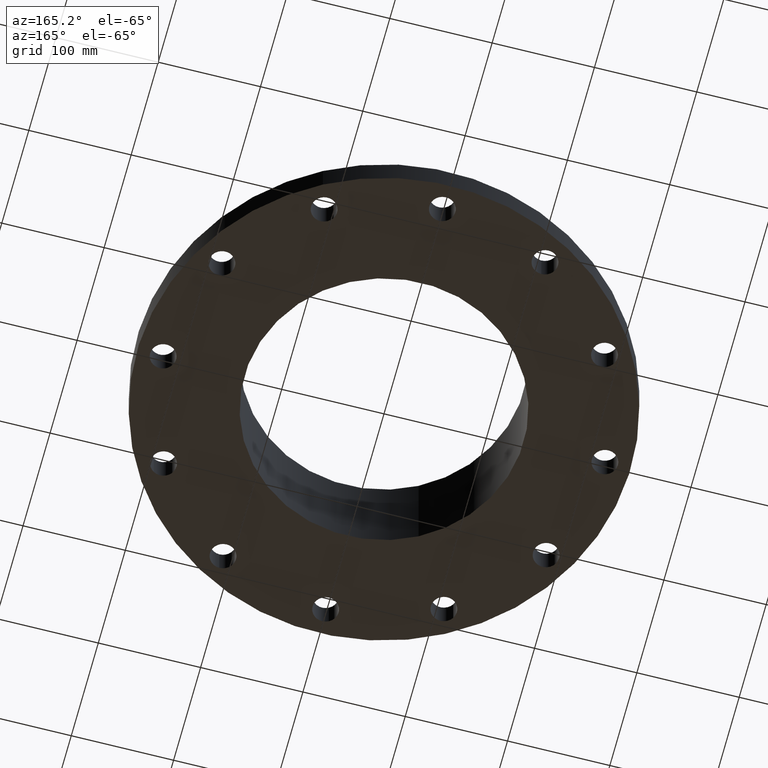
[diagram: clean part render]
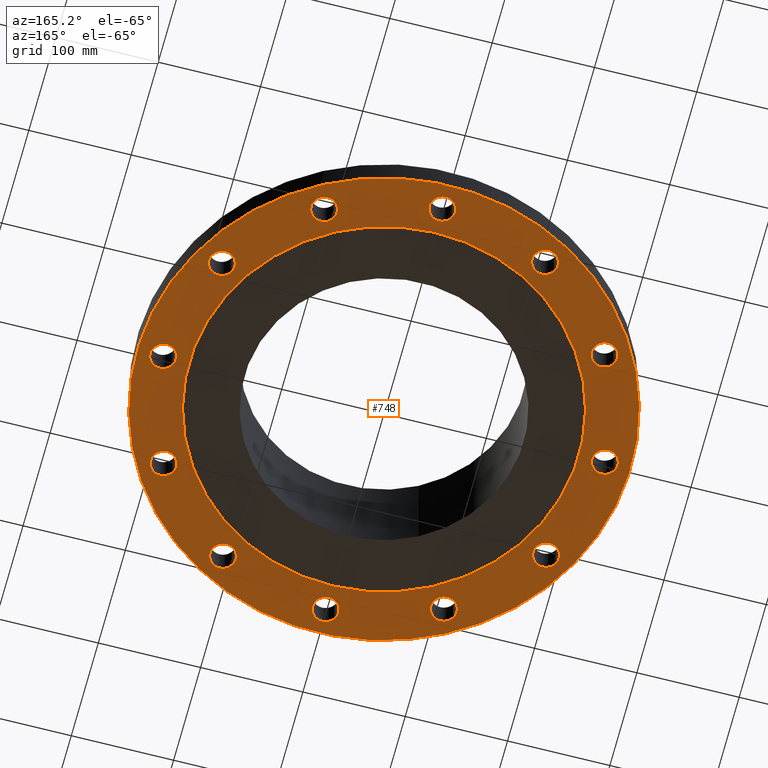
[diagram: same view with one face highlighted and labeled with its STEP entity id]
A machine part, auxiliary view. The second image highlights one B-rep face of the part: STEP entity #748.
In plain terms, the highlighted planar face has unit normal (0, 0, -1).
Its self-contained STEP definition (entity closure, byte-faithful):
#51=AXIS2_PLACEMENT_3D('Circle Axis2P3D',#49,#50,$) ;
#77=AXIS2_PLACEMENT_3D('Circle Axis2P3D',#75,#76,$) ;
#99=AXIS2_PLACEMENT_3D('Circle Axis2P3D',#97,#98,$) ;
#134=AXIS2_PLACEMENT_3D('Circle Axis2P3D',#132,#133,$) ;
#513=AXIS2_PLACEMENT_3D('Plane Axis2P3D',#510,#511,#512) ;
#517=AXIS2_PLACEMENT_3D('Circle Axis2P3D',#515,#516,$) ;
#526=AXIS2_PLACEMENT_3D('Circle Axis2P3D',#524,#525,$) ;
#552=AXIS2_PLACEMENT_3D('Circle Axis2P3D',#550,#551,$) ;
#561=AXIS2_PLACEMENT_3D('Circle Axis2P3D',#559,#560,$) ;
#570=AXIS2_PLACEMENT_3D('Circle Axis2P3D',#568,#569,$) ;
#579=AXIS2_PLACEMENT_3D('Circle Axis2P3D',#577,#578,$) ;
#588=AXIS2_PLACEMENT_3D('Circle Axis2P3D',#586,#587,$) ;
#597=AXIS2_PLACEMENT_3D('Circle Axis2P3D',#595,#596,$) ;
#606=AXIS2_PLACEMENT_3D('Circle Axis2P3D',#604,#605,$) ;
#615=AXIS2_PLACEMENT_3D('Circle Axis2P3D',#613,#614,$) ;
#624=AXIS2_PLACEMENT_3D('Circle Axis2P3D',#622,#623,$) ;
#633=AXIS2_PLACEMENT_3D('Circle Axis2P3D',#631,#632,$) ;
#642=AXIS2_PLACEMENT_3D('Circle Axis2P3D',#640,#641,$) ;
#651=AXIS2_PLACEMENT_3D('Circle Axis2P3D',#649,#650,$) ;
#660=AXIS2_PLACEMENT_3D('Circle Axis2P3D',#658,#659,$) ;
#669=AXIS2_PLACEMENT_3D('Circle Axis2P3D',#667,#668,$) ;
#678=AXIS2_PLACEMENT_3D('Circle Axis2P3D',#676,#677,$) ;
#687=AXIS2_PLACEMENT_3D('Circle Axis2P3D',#685,#686,$) ;
#696=AXIS2_PLACEMENT_3D('Circle Axis2P3D',#694,#695,$) ;
#705=AXIS2_PLACEMENT_3D('Circle Axis2P3D',#703,#704,$) ;
#714=AXIS2_PLACEMENT_3D('Circle Axis2P3D',#712,#713,$) ;
#723=AXIS2_PLACEMENT_3D('Circle Axis2P3D',#721,#722,$) ;
#732=AXIS2_PLACEMENT_3D('Circle Axis2P3D',#730,#731,$) ;
#741=AXIS2_PLACEMENT_3D('Circle Axis2P3D',#739,#740,$) ;
#44=CARTESIAN_POINT('Vertex',(8.06120871909,0.239712769303,0.)) ;
#49=CARTESIAN_POINT('Axis2P3D Location',(8.50000000003,0.,0.)) ;
#53=CARTESIAN_POINT('Vertex',(8.93879128098,-0.239712769303,0.)) ;
#75=CARTESIAN_POINT('Axis2P3D Location',(8.50000000003,0.,0.)) ;
#97=CARTESIAN_POINT('Axis2P3D Location',(0.,0.,1.1189649382E-015)) ;
#101=CARTESIAN_POINT('Vertex',(-4.55454261676,-8.33703433799,1.1189649382E-015)) ;
#103=CARTESIAN_POINT('Vertex',(4.55454261676,8.33703433799,1.1189649382E-015)) ;
#132=CARTESIAN_POINT('Axis2P3D Location',(0.,0.,1.1189649382E-015)) ;
#510=CARTESIAN_POINT('Axis2P3D Location',(0.,5.37500000002,0.)) ;
#515=CARTESIAN_POINT('Axis2P3D Location',(0.,0.,0.)) ;
#519=CARTESIAN_POINT('Vertex',(-3.59569153955,-6.5818692142,0.)) ;
#521=CARTESIAN_POINT('Vertex',(3.59569153955,6.5818692142,0.)) ;
#524=CARTESIAN_POINT('Axis2P3D Location',(0.,0.,0.)) ;
#550=CARTESIAN_POINT('Axis2P3D Location',(7.3612159322,-4.25000000002,0.)) ;
#554=CARTESIAN_POINT('Vertex',(7.10106792059,-3.82300701172,0.)) ;
#556=CARTESIAN_POINT('Vertex',(7.6213639438,-4.67699298832,0.)) ;
#559=CARTESIAN_POINT('Axis2P3D Location',(7.3612159322,-4.25000000002,0.)) ;
#568=CARTESIAN_POINT('Axis2P3D Location',(4.25000000002,-7.3612159322,0.)) ;
#572=CARTESIAN_POINT('Vertex',(4.23820170737,-6.86135515129,0.)) ;
#574=CARTESIAN_POINT('Vertex',(4.26179829266,-7.86107671311,0.)) ;
#577=CARTESIAN_POINT('Axis2P3D Location',(4.25000000002,-7.3612159322,0.)) ;
#586=CARTESIAN_POINT('Axis2P3D Location',(5.59482469102E-016,-8.50000000003,0.)) ;
#590=CARTESIAN_POINT('Vertex',(0.239712769303,-8.06120871909,0.)) ;
#592=CARTESIAN_POINT('Vertex',(-0.239712769303,-8.93879128098,0.)) ;
#595=CARTESIAN_POINT('Axis2P3D Location',(-4.19611851827E-016,-8.50000000003,0.)) ;
#604=CARTESIAN_POINT('Axis2P3D Location',(-4.25000000002,-7.3612159322,0.)) ;
#608=CARTESIAN_POINT('Vertex',(-3.82300701172,-7.10106792059,0.)) ;
#610=CARTESIAN_POINT('Vertex',(-4.67699298832,-7.6213639438,-1.1189649382E-015)) ;
#613=CARTESIAN_POINT('Axis2P3D Location',(-4.25000000002,-7.3612159322,0.)) ;
#622=CARTESIAN_POINT('Axis2P3D Location',(-7.3612159322,-4.25000000002,0.)) ;
#626=CARTESIAN_POINT('Vertex',(-6.86135515129,-4.23820170737,0.)) ;
#628=CARTESIAN_POINT('Vertex',(-7.86107671311,-4.26179829266,0.)) ;
#631=CARTESIAN_POINT('Axis2P3D Location',(-7.3612159322,-4.25000000002,0.)) ;
#640=CARTESIAN_POINT('Axis2P3D Location',(-8.50000000003,-1.1189649382E-015,0.)) ;
#644=CARTESIAN_POINT('Vertex',(-8.06120871909,-0.239712769303,0.)) ;
#646=CARTESIAN_POINT('Vertex',(-8.93879128098,0.239712769303,0.)) ;
#649=CARTESIAN_POINT('Axis2P3D Location',(-8.50000000003,-1.1189649382E-015,0.)) ;
#658=CARTESIAN_POINT('Axis2P3D Location',(-7.3612159322,4.25000000002,0.)) ;
#662=CARTESIAN_POINT('Vertex',(-7.10106792059,3.82300701172,0.)) ;
#664=CARTESIAN_POINT('Vertex',(-7.6213639438,4.67699298832,0.)) ;
#667=CARTESIAN_POINT('Axis2P3D Location',(-7.3612159322,4.25000000002,0.)) ;
#676=CARTESIAN_POINT('Axis2P3D Location',(-4.25000000002,7.3612159322,0.)) ;
#680=CARTESIAN_POINT('Vertex',(-4.23820170737,6.86135515129,0.)) ;
#682=CARTESIAN_POINT('Vertex',(-4.26179829266,7.86107671311,0.)) ;
#685=CARTESIAN_POINT('Axis2P3D Location',(-4.25000000002,7.3612159322,0.)) ;
#694=CARTESIAN_POINT('Axis2P3D Location',(-4.19611851827E-016,8.50000000003,0.)) ;
#698=CARTESIAN_POINT('Vertex',(-0.239712769303,8.06120871909,0.)) ;
#700=CARTESIAN_POINT('Vertex',(0.239712769303,8.93879128098,0.)) ;
#703=CARTESIAN_POINT('Axis2P3D Location',(2.09805925913E-016,8.50000000003,0.)) ;
#712=CARTESIAN_POINT('Axis2P3D Location',(4.25000000002,7.3612159322,0.)) ;
#716=CARTESIAN_POINT('Vertex',(3.82300701172,7.10106792059,0.)) ;
#718=CARTESIAN_POINT('Vertex',(4.67699298832,7.6213639438,0.)) ;
#721=CARTESIAN_POINT('Axis2P3D Location',(4.25000000002,7.3612159322,0.)) ;
#730=CARTESIAN_POINT('Axis2P3D Location',(7.3612159322,4.25000000002,0.)) ;
#734=CARTESIAN_POINT('Vertex',(6.86135515129,4.23820170737,0.)) ;
#736=CARTESIAN_POINT('Vertex',(7.86107671311,4.26179829266,0.)) ;
#739=CARTESIAN_POINT('Axis2P3D Location',(7.3612159322,4.25000000002,0.)) ;
#50=DIRECTION('Axis2P3D Direction',(0.,-0.,-0.0393700787402)) ;
#76=DIRECTION('Axis2P3D Direction',(0.,-0.,-0.0393700787402)) ;
#98=DIRECTION('Axis2P3D Direction',(0.,0.,-0.0393700787402)) ;
#133=DIRECTION('Axis2P3D Direction',(0.,0.,-0.0393700787402)) ;
#511=DIRECTION('Axis2P3D Direction',(0.,0.,-0.0393700787402)) ;
#512=DIRECTION('Axis2P3D XDirection',(0.0393700787402,0.,0.)) ;
#516=DIRECTION('Axis2P3D Direction',(0.,0.,-0.0393700787402)) ;
#525=DIRECTION('Axis2P3D Direction',(0.,0.,-0.0393700787402)) ;
#551=DIRECTION('Axis2P3D Direction',(0.,0.,-0.0393700787402)) ;
#560=DIRECTION('Axis2P3D Direction',(0.,0.,-0.0393700787402)) ;
#569=DIRECTION('Axis2P3D Direction',(0.,0.,-0.0393700787402)) ;
#578=DIRECTION('Axis2P3D Direction',(0.,0.,-0.0393700787402)) ;
#587=DIRECTION('Axis2P3D Direction',(0.,0.,-0.0393700787402)) ;
#596=DIRECTION('Axis2P3D Direction',(0.,0.,-0.0393700787402)) ;
#605=DIRECTION('Axis2P3D Direction',(0.,0.,-0.0393700787402)) ;
#614=DIRECTION('Axis2P3D Direction',(0.,0.,-0.0393700787402)) ;
#623=DIRECTION('Axis2P3D Direction',(0.,0.,-0.0393700787402)) ;
#632=DIRECTION('Axis2P3D Direction',(0.,0.,-0.0393700787402)) ;
#641=DIRECTION('Axis2P3D Direction',(0.,0.,-0.0393700787402)) ;
#650=DIRECTION('Axis2P3D Direction',(0.,0.,-0.0393700787402)) ;
#659=DIRECTION('Axis2P3D Direction',(0.,0.,-0.0393700787402)) ;
#668=DIRECTION('Axis2P3D Direction',(0.,0.,-0.0393700787402)) ;
#677=DIRECTION('Axis2P3D Direction',(0.,0.,-0.0393700787402)) ;
#686=DIRECTION('Axis2P3D Direction',(0.,0.,-0.0393700787402)) ;
#695=DIRECTION('Axis2P3D Direction',(0.,0.,-0.0393700787402)) ;
#704=DIRECTION('Axis2P3D Direction',(0.,0.,-0.0393700787402)) ;
#713=DIRECTION('Axis2P3D Direction',(0.,0.,-0.0393700787402)) ;
#722=DIRECTION('Axis2P3D Direction',(0.,0.,-0.0393700787402)) ;
#731=DIRECTION('Axis2P3D Direction',(0.,0.,-0.0393700787402)) ;
#740=DIRECTION('Axis2P3D Direction',(0.,0.,-0.0393700787402)) ;
#539=ORIENTED_EDGE('',*,*,#105,.T.) ;
#540=ORIENTED_EDGE('',*,*,#136,.T.) ;
#543=ORIENTED_EDGE('',*,*,#79,.F.) ;
#544=ORIENTED_EDGE('',*,*,#55,.F.) ;
#547=ORIENTED_EDGE('',*,*,#528,.F.) ;
#548=ORIENTED_EDGE('',*,*,#523,.F.) ;
#565=ORIENTED_EDGE('',*,*,#558,.F.) ;
#566=ORIENTED_EDGE('',*,*,#563,.F.) ;
#583=ORIENTED_EDGE('',*,*,#576,.F.) ;
#584=ORIENTED_EDGE('',*,*,#581,.F.) ;
#601=ORIENTED_EDGE('',*,*,#594,.F.) ;
#602=ORIENTED_EDGE('',*,*,#599,.F.) ;
#619=ORIENTED_EDGE('',*,*,#612,.F.) ;
#620=ORIENTED_EDGE('',*,*,#617,.F.) ;
#637=ORIENTED_EDGE('',*,*,#630,.F.) ;
#638=ORIENTED_EDGE('',*,*,#635,.F.) ;
#655=ORIENTED_EDGE('',*,*,#648,.F.) ;
#656=ORIENTED_EDGE('',*,*,#653,.F.) ;
#673=ORIENTED_EDGE('',*,*,#666,.F.) ;
#674=ORIENTED_EDGE('',*,*,#671,.F.) ;
#691=ORIENTED_EDGE('',*,*,#684,.F.) ;
#692=ORIENTED_EDGE('',*,*,#689,.F.) ;
#709=ORIENTED_EDGE('',*,*,#702,.F.) ;
#710=ORIENTED_EDGE('',*,*,#707,.F.) ;
#727=ORIENTED_EDGE('',*,*,#720,.F.) ;
#728=ORIENTED_EDGE('',*,*,#725,.F.) ;
#745=ORIENTED_EDGE('',*,*,#738,.F.) ;
#746=ORIENTED_EDGE('',*,*,#743,.F.) ;
#545=FACE_BOUND('',#542,.T.) ;
#549=FACE_BOUND('',#546,.T.) ;
#567=FACE_BOUND('',#564,.T.) ;
#585=FACE_BOUND('',#582,.T.) ;
#603=FACE_BOUND('',#600,.T.) ;
#621=FACE_BOUND('',#618,.T.) ;
#639=FACE_BOUND('',#636,.T.) ;
#657=FACE_BOUND('',#654,.T.) ;
#675=FACE_BOUND('',#672,.T.) ;
#693=FACE_BOUND('',#690,.T.) ;
#711=FACE_BOUND('',#708,.T.) ;
#729=FACE_BOUND('',#726,.T.) ;
#747=FACE_BOUND('',#744,.T.) ;
#748=ADVANCED_FACE('PartBody',(#541,#545,#549,#567,#585,#603,#621,#639,#657,#675,#693,#711,#729,#747),#514,.T.) ;
#52=CIRCLE('generated circle',#51,0.500000000002) ;
#78=CIRCLE('generated circle',#77,0.500000000002) ;
#100=CIRCLE('generated circle',#99,9.50000000004) ;
#135=CIRCLE('generated circle',#134,9.50000000004) ;
#518=CIRCLE('generated circle',#517,7.50000000003) ;
#527=CIRCLE('generated circle',#526,7.50000000003) ;
#553=CIRCLE('generated circle',#552,0.500000000002) ;
#562=CIRCLE('generated circle',#561,0.500000000002) ;
#571=CIRCLE('generated circle',#570,0.500000000002) ;
#580=CIRCLE('generated circle',#579,0.500000000002) ;
#589=CIRCLE('generated circle',#588,0.500000000002) ;
#598=CIRCLE('generated circle',#597,0.500000000002) ;
#607=CIRCLE('generated circle',#606,0.500000000002) ;
#616=CIRCLE('generated circle',#615,0.500000000002) ;
#625=CIRCLE('generated circle',#624,0.500000000002) ;
#634=CIRCLE('generated circle',#633,0.500000000002) ;
#643=CIRCLE('generated circle',#642,0.500000000002) ;
#652=CIRCLE('generated circle',#651,0.500000000002) ;
#661=CIRCLE('generated circle',#660,0.500000000002) ;
#670=CIRCLE('generated circle',#669,0.500000000002) ;
#679=CIRCLE('generated circle',#678,0.500000000002) ;
#688=CIRCLE('generated circle',#687,0.500000000002) ;
#697=CIRCLE('generated circle',#696,0.500000000002) ;
#706=CIRCLE('generated circle',#705,0.500000000002) ;
#715=CIRCLE('generated circle',#714,0.500000000002) ;
#724=CIRCLE('generated circle',#723,0.500000000002) ;
#733=CIRCLE('generated circle',#732,0.500000000002) ;
#742=CIRCLE('generated circle',#741,0.500000000002) ;
#55=EDGE_CURVE('',#45,#54,#52,.T.) ;
#79=EDGE_CURVE('',#54,#45,#78,.T.) ;
#105=EDGE_CURVE('',#102,#104,#100,.T.) ;
#136=EDGE_CURVE('',#104,#102,#135,.T.) ;
#523=EDGE_CURVE('',#520,#522,#518,.T.) ;
#528=EDGE_CURVE('',#522,#520,#527,.T.) ;
#558=EDGE_CURVE('',#555,#557,#553,.T.) ;
#563=EDGE_CURVE('',#557,#555,#562,.T.) ;
#576=EDGE_CURVE('',#573,#575,#571,.T.) ;
#581=EDGE_CURVE('',#575,#573,#580,.T.) ;
#594=EDGE_CURVE('',#591,#593,#589,.T.) ;
#599=EDGE_CURVE('',#593,#591,#598,.T.) ;
#612=EDGE_CURVE('',#609,#611,#607,.T.) ;
#617=EDGE_CURVE('',#611,#609,#616,.T.) ;
#630=EDGE_CURVE('',#627,#629,#625,.T.) ;
#635=EDGE_CURVE('',#629,#627,#634,.T.) ;
#648=EDGE_CURVE('',#645,#647,#643,.T.) ;
#653=EDGE_CURVE('',#647,#645,#652,.T.) ;
#666=EDGE_CURVE('',#663,#665,#661,.T.) ;
#671=EDGE_CURVE('',#665,#663,#670,.T.) ;
#684=EDGE_CURVE('',#681,#683,#679,.T.) ;
#689=EDGE_CURVE('',#683,#681,#688,.T.) ;
#702=EDGE_CURVE('',#699,#701,#697,.T.) ;
#707=EDGE_CURVE('',#701,#699,#706,.T.) ;
#720=EDGE_CURVE('',#717,#719,#715,.T.) ;
#725=EDGE_CURVE('',#719,#717,#724,.T.) ;
#738=EDGE_CURVE('',#735,#737,#733,.T.) ;
#743=EDGE_CURVE('',#737,#735,#742,.T.) ;
#538=EDGE_LOOP('',(#539,#540)) ;
#542=EDGE_LOOP('',(#543,#544)) ;
#546=EDGE_LOOP('',(#547,#548)) ;
#564=EDGE_LOOP('',(#565,#566)) ;
#582=EDGE_LOOP('',(#583,#584)) ;
#600=EDGE_LOOP('',(#601,#602)) ;
#618=EDGE_LOOP('',(#619,#620)) ;
#636=EDGE_LOOP('',(#637,#638)) ;
#654=EDGE_LOOP('',(#655,#656)) ;
#672=EDGE_LOOP('',(#673,#674)) ;
#690=EDGE_LOOP('',(#691,#692)) ;
#708=EDGE_LOOP('',(#709,#710)) ;
#726=EDGE_LOOP('',(#727,#728)) ;
#744=EDGE_LOOP('',(#745,#746)) ;
#541=FACE_OUTER_BOUND('',#538,.T.) ;
#514=PLANE('',#513) ;
#45=VERTEX_POINT('',#44) ;
#54=VERTEX_POINT('',#53) ;
#102=VERTEX_POINT('',#101) ;
#104=VERTEX_POINT('',#103) ;
#520=VERTEX_POINT('',#519) ;
#522=VERTEX_POINT('',#521) ;
#555=VERTEX_POINT('',#554) ;
#557=VERTEX_POINT('',#556) ;
#573=VERTEX_POINT('',#572) ;
#575=VERTEX_POINT('',#574) ;
#591=VERTEX_POINT('',#590) ;
#593=VERTEX_POINT('',#592) ;
#609=VERTEX_POINT('',#608) ;
#611=VERTEX_POINT('',#610) ;
#627=VERTEX_POINT('',#626) ;
#629=VERTEX_POINT('',#628) ;
#645=VERTEX_POINT('',#644) ;
#647=VERTEX_POINT('',#646) ;
#663=VERTEX_POINT('',#662) ;
#665=VERTEX_POINT('',#664) ;
#681=VERTEX_POINT('',#680) ;
#683=VERTEX_POINT('',#682) ;
#699=VERTEX_POINT('',#698) ;
#701=VERTEX_POINT('',#700) ;
#717=VERTEX_POINT('',#716) ;
#719=VERTEX_POINT('',#718) ;
#735=VERTEX_POINT('',#734) ;
#737=VERTEX_POINT('',#736) ;